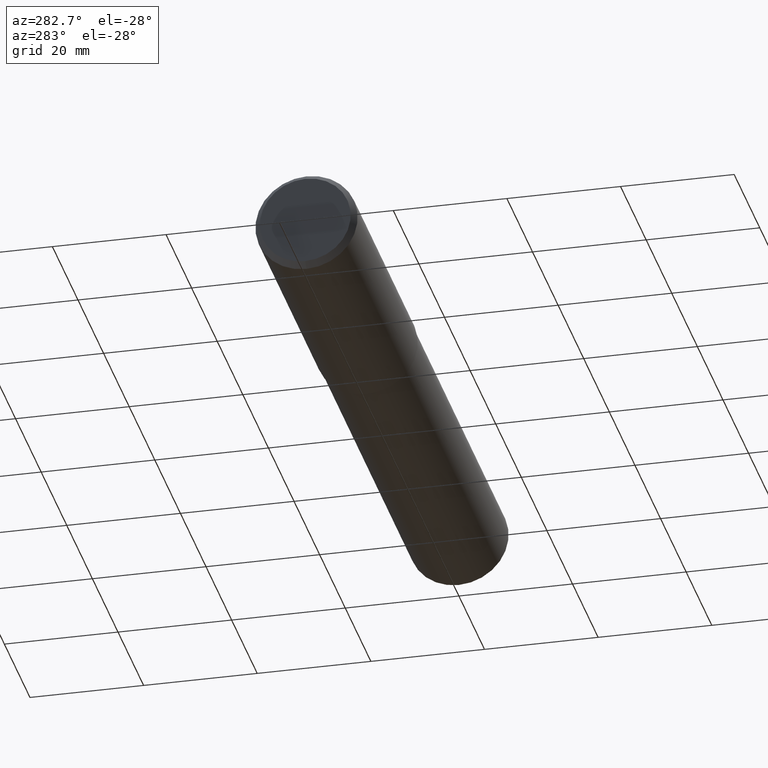
[diagram: clean part render]
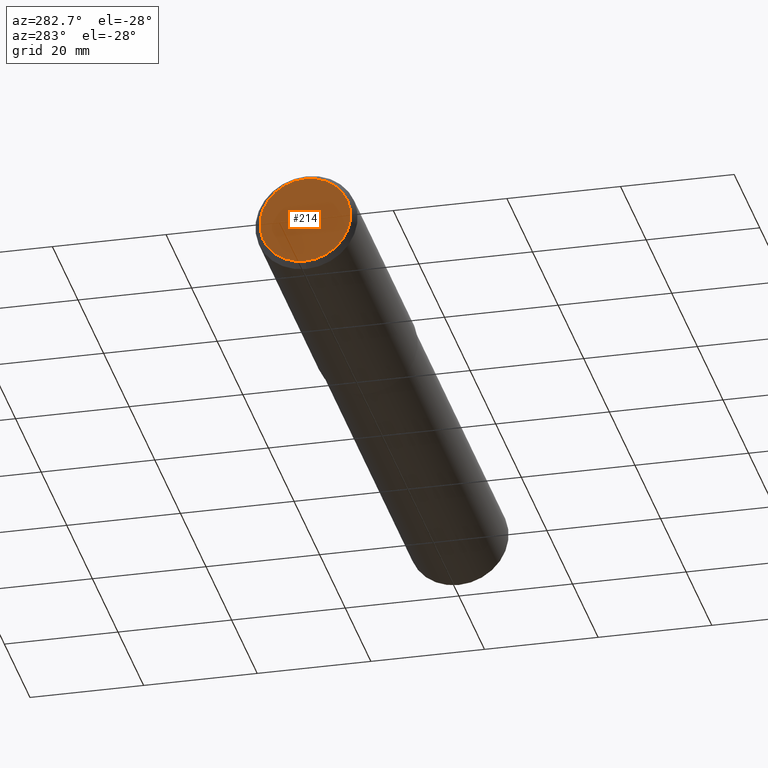
[diagram: same view with one face highlighted and labeled with its STEP entity id]
A machine part, auxiliary view. The second image highlights one B-rep face of the part: STEP entity #214.
In plain terms, the highlighted planar face has unit normal (-1, 0, 0).
Its self-contained STEP definition (entity closure, byte-faithful):
#5 = DIRECTION ( 'NONE',  ( 0.000000000000000000, 0.000000000000000000, -1.000000000000000000 ) ) ;
#23 = FACE_OUTER_BOUND ( 'NONE', #245, .T. ) ;
#33 = DIRECTION ( 'NONE',  ( 1.000000000000000000, -0.000000000000000000, -0.000000000000000000 ) ) ;
#41 = ORIENTED_EDGE ( 'NONE', *, *, #283, .F. ) ;
#54 = PLANE ( 'NONE',  #159 ) ;
#62 = ORIENTED_EDGE ( 'NONE', *, *, #256, .F. ) ;
#71 = VERTEX_POINT ( 'NONE', #273 ) ;
#83 = CIRCLE ( 'NONE', #298, 0.3149606299212597271 ) ;
#99 = CIRCLE ( 'NONE', #370, 0.3149606299212597271 ) ;
#131 = DIRECTION ( 'NONE',  ( 0.000000000000000000, 0.000000000000000000, 1.000000000000000000 ) ) ;
#155 = VERTEX_POINT ( 'NONE', #168 ) ;
#159 = AXIS2_PLACEMENT_3D ( 'NONE', #343, #188, #131 ) ;
#168 = CARTESIAN_POINT ( 'NONE',  ( -8.537024980200822558E-18, 4.098227477461613409E-17, 0.3149606299212597271 ) ) ;
#188 = DIRECTION ( 'NONE',  ( -1.000000000000000000, 0.000000000000000000, 0.000000000000000000 ) ) ;
#214 = ADVANCED_FACE ( 'NONE', ( #23 ), #54, .T. ) ;
#245 = EDGE_LOOP ( 'NONE', ( #62, #41 ) ) ;
#252 = DIRECTION ( 'NONE',  ( 1.000000000000000000, -0.000000000000000000, -0.000000000000000000 ) ) ;
#256 = EDGE_CURVE ( 'NONE', #71, #155, #99, .T. ) ;
#273 = CARTESIAN_POINT ( 'NONE',  ( -8.537024980200822558E-18, 0.000000000000000000, -0.3149606299212597271 ) ) ;
#281 = CARTESIAN_POINT ( 'NONE',  ( -8.537024980200822558E-18, 0.000000000000000000, 0.000000000000000000 ) ) ;
#283 = EDGE_CURVE ( 'NONE', #155, #71, #83, .T. ) ;
#298 = AXIS2_PLACEMENT_3D ( 'NONE', #321, #33, #5 ) ;
#321 = CARTESIAN_POINT ( 'NONE',  ( -8.537024980200822558E-18, 0.000000000000000000, 0.000000000000000000 ) ) ;
#343 = CARTESIAN_POINT ( 'NONE',  ( -4.821444091131301509E-18, 0.3149606299212597271, 0.000000000000000000 ) ) ;
#370 = AXIS2_PLACEMENT_3D ( 'NONE', #281, #252, #378 ) ;
#378 = DIRECTION ( 'NONE',  ( 0.000000000000000000, 0.000000000000000000, -1.000000000000000000 ) ) ;